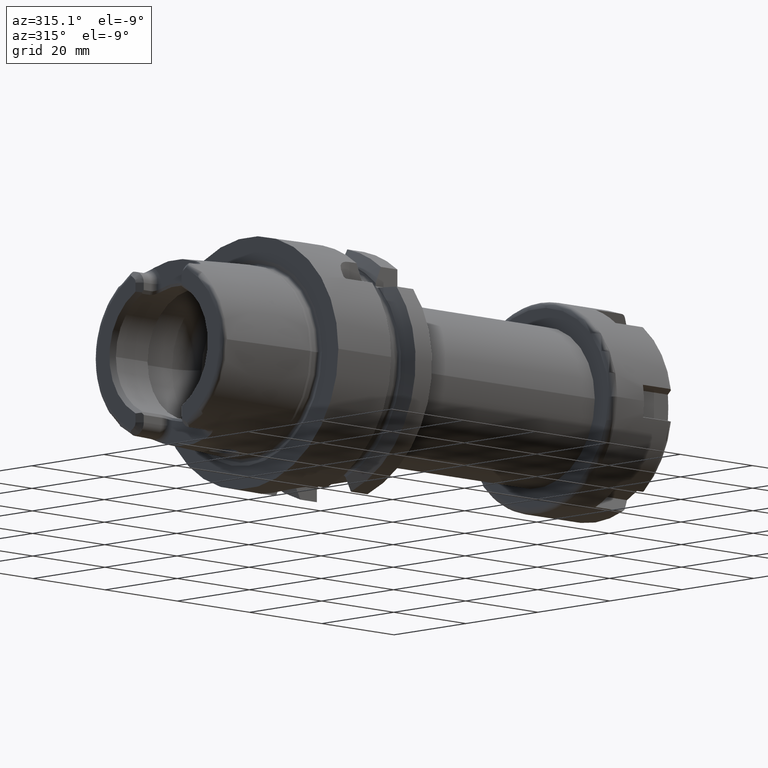
[diagram: clean part render]
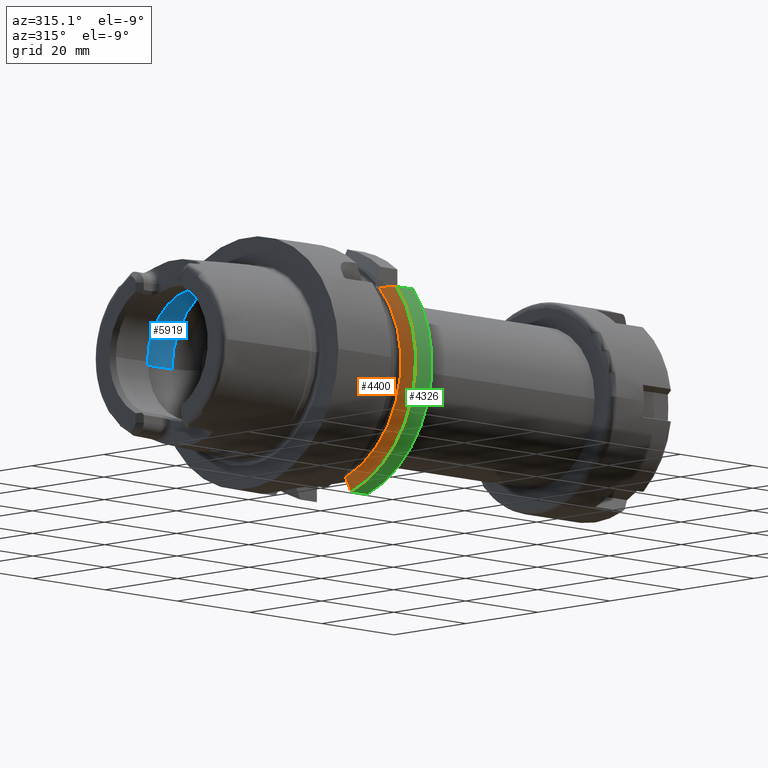
[diagram: same view with three faces highlighted in distinct colors, each labeled with its STEP entity id]
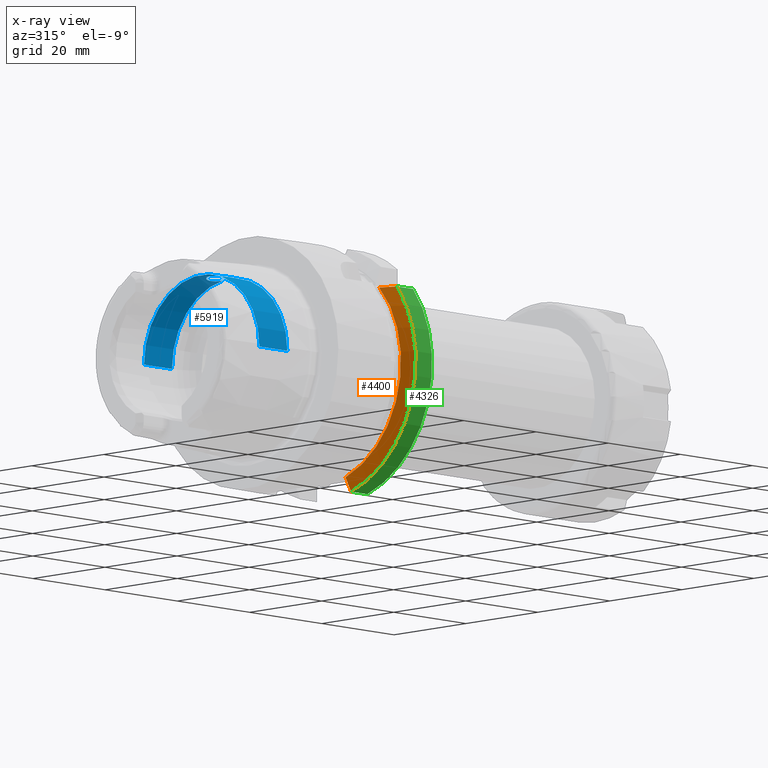
[diagram: x-ray of the same camera — body ghosted, the three highlighted faces saturated]
A machine part, auxiliary view with three faces highlighted in distinct colors.
The next image is the same camera in x-ray (body ghosted, the three faces saturated) — at least one of them is partly hidden behind the body in this view.
Their STEP definitions:

[orange] entity #4400 — the highlighted conical surface has half-angle 60 deg.
#1028=CARTESIAN_POINT('',(2.139193283149E1,0.E0,0.E0));
#1029=DIRECTION('',(-1.E0,0.E0,0.E0));
#1030=DIRECTION('',(0.E0,-2.807E-1,-9.597955563556E-1));
#1031=AXIS2_PLACEMENT_3D('',#1028,#1029,#1030);
#1153=CARTESIAN_POINT('',(1.99125E1,0.E0,0.E0));
#1154=DIRECTION('',(-1.E0,0.E0,0.E0));
#1155=DIRECTION('',(0.E0,-3.127570026704E-1,-9.498331733945E-1));
#1156=AXIS2_PLACEMENT_3D('',#1153,#1154,#1155);
#1932=CARTESIAN_POINT('',(1.99125E1,-1.636523825010E1,1.535E1));
#1933=CARTESIAN_POINT('',(2.005777044718E1,-1.671021589054E1,1.535E1));
#1934=CARTESIAN_POINT('',(2.036082860334E1,-1.741962945744E1,1.535E1));
#1935=CARTESIAN_POINT('',(2.085085341992E1,-1.853580810939E1,1.535E1));
#1936=CARTESIAN_POINT('',(2.120690576891E1,-1.932662776812E1,1.535E1));
#1937=CARTESIAN_POINT('',(2.139193283149E1,-1.973265060756E1,1.535E1));
#1978=CARTESIAN_POINT('',(1.99125E1,-7.0175E0,-2.131192663117E1));
#1979=CARTESIAN_POINT('',(2.006811666437E1,-7.0175E0,-2.159569853632E1));
#1980=CARTESIAN_POINT('',(2.038519487445E1,-7.0175E0,-2.217279119970E1));
#1981=CARTESIAN_POINT('',(2.087809730565E1,-7.0175E0,-2.306665585329E1));
#1982=CARTESIAN_POINT('',(2.121868469876E1,-7.0175E0,-2.368224465230E1));
#1983=CARTESIAN_POINT('',(2.139193283149E1,-7.0175E0,-2.399488890889E1));
#2981=CARTESIAN_POINT('',(1.99125E1,-7.0175E0,-2.131192663117E1));
#2983=VERTEX_POINT('',#2981);
#2984=VERTEX_POINT('',#1983);
#3029=CARTESIAN_POINT('',(1.99125E1,-1.636523825010E1,1.535E1));
#3030=VERTEX_POINT('',#3029);
#3031=VERTEX_POINT('',#1937);
#4386=CARTESIAN_POINT('',(2.065221641574E1,0.E0,0.E0));
#4387=DIRECTION('',(1.E0,0.E0,0.E0));
#4388=DIRECTION('',(0.E0,-1.E0,0.E0));
#4389=AXIS2_PLACEMENT_3D('',#4386,#4387,#4388);
#4390=CONICAL_SURFACE('',#4389,2.371877358474E1,6.E1);
#4391=ORIENTED_EDGE('',*,*,#4320,.F.);
#4393=ORIENTED_EDGE('',*,*,#4392,.F.);
#4395=ORIENTED_EDGE('',*,*,#4394,.T.);
#4397=ORIENTED_EDGE('',*,*,#4396,.T.);
#4398=EDGE_LOOP('',(#4391,#4393,#4395,#4397));
#4399=FACE_OUTER_BOUND('',#4398,.F.);
#4400=ADVANCED_FACE('',(#4399),#4390,.T.);
#1032=CIRCLE('',#1031,2.5E1);
#1157=CIRCLE('',#1156,2.243754716948E1);
#1938=B_SPLINE_CURVE_WITH_KNOTS('',3,(#1932,#1933,#1934,#1935,#1936,#1937),
.UNSPECIFIED.,.F.,.F.,(4,1,1,4),(0.E0,3.333333333333E-1,6.666666666667E-1,1.E0),
.UNSPECIFIED.);
#1984=B_SPLINE_CURVE_WITH_KNOTS('',3,(#1978,#1979,#1980,#1981,#1982,#1983),
.UNSPECIFIED.,.F.,.F.,(4,1,1,4),(0.E0,3.333333333333E-1,6.666666666667E-1,1.E0),
.UNSPECIFIED.);
#4320=EDGE_CURVE('',#2984,#3031,#1032,.T.);
#4392=EDGE_CURVE('',#2983,#2984,#1984,.T.);
#4394=EDGE_CURVE('',#2983,#3030,#1157,.T.);
#4396=EDGE_CURVE('',#3030,#3031,#1938,.T.);

[blue] entity #5919 — the highlighted cylindrical surface (partial cylindrical patch) has radius 16.04 mm, axis along (1, 0, 0).
#2176=CARTESIAN_POINT('',(-5.207075858867E0,1.934553923521E0,1.592291120106E1));
#2178=CARTESIAN_POINT('',(-5.207075858867E0,-1.934553923521E0,
1.592291120106E1));
#2192=CARTESIAN_POINT('',(-5.207075858867E0,1.934553923521E0,1.592291120106E1));
#2193=CARTESIAN_POINT('',(-5.306320503305E0,2.052183335833E0,1.590861981689E1));
#2194=CARTESIAN_POINT('',(-5.520476497369E0,2.269869891704E0,1.587956102050E1));
#2195=CARTESIAN_POINT('',(-5.894028504029E0,2.548236377436E0,1.583695701916E1));
#2196=CARTESIAN_POINT('',(-6.305385003655E0,2.764723008499E0,1.580028936537E1));
#2197=CARTESIAN_POINT('',(-6.739093470370E0,2.913892885959E0,1.577324272562E1));
#2198=CARTESIAN_POINT('',(-7.191228107409E0,2.995924116193E0,1.575774568186E1));
#2199=CARTESIAN_POINT('',(-7.660510654510E0,3.008582784075E0,1.575531451767E1));
#2200=CARTESIAN_POINT('',(-8.146781883912E0,2.943044302203E0,1.576780001743E1));
#2201=CARTESIAN_POINT('',(-8.609725020835E0,2.801070089858E0,1.579386826397E1));
#2202=CARTESIAN_POINT('',(-9.045274296343E0,2.586784786743E0,1.583070637763E1));
#2203=CARTESIAN_POINT('',(-9.445937304317E0,2.301136177936E0,1.587517601580E1));
#2204=CARTESIAN_POINT('',(-9.799042926387E0,1.948687636399E0,1.592272085609E1));
#2205=CARTESIAN_POINT('',(-1.009339556115E1,1.537509778757E0,1.596823642170E1));
#2206=CARTESIAN_POINT('',(-1.032634342467E1,1.054522533406E0,1.600806839229E1));
#2207=CARTESIAN_POINT('',(-1.046989883616E1,5.251672913284E-1,
1.603432516457E1));
#2208=CARTESIAN_POINT('',(-1.05E1,1.762494104108E-1,1.604E1));
#2209=CARTESIAN_POINT('',(-1.05E1,0.E0,1.604E1));
#2211=CARTESIAN_POINT('',(-5.207075858867E0,0.E0,0.E0));
#2212=DIRECTION('',(1.E0,0.E0,0.E0));
#2213=DIRECTION('',(0.E0,1.E0,0.E0));
#2214=AXIS2_PLACEMENT_3D('',#2211,#2212,#2213);
#2216=CARTESIAN_POINT('',(-5.207075858867E0,0.E0,0.E0));
#2217=DIRECTION('',(1.E0,0.E0,0.E0));
#2218=DIRECTION('',(0.E0,-1.206080999702E-1,9.927001995676E-1));
#2219=AXIS2_PLACEMENT_3D('',#2216,#2217,#2218);
#2221=CARTESIAN_POINT('',(-1.05E1,0.E0,1.604E1));
#2222=CARTESIAN_POINT('',(-1.05E1,-1.755342483422E-1,1.604E1));
#2223=CARTESIAN_POINT('',(-1.047014794877E1,-5.229251093153E-1,
1.603437221888E1));
#2224=CARTESIAN_POINT('',(-1.032791385930E1,-1.049702619740E0,
1.600835368841E1));
#2225=CARTESIAN_POINT('',(-1.009770259122E1,-1.529846448746E0,
1.596895246629E1));
#2226=CARTESIAN_POINT('',(-9.806279667905E0,-1.939932067796E0,
1.592378677339E1));
#2227=CARTESIAN_POINT('',(-9.456158236555E0,-2.292295766108E0,
1.587645662467E1));
#2228=CARTESIAN_POINT('',(-9.058710431136E0,-2.578569590166E0,
1.583205208676E1));
#2229=CARTESIAN_POINT('',(-8.626497976351E0,-2.794212612404E0,
1.579508959542E1));
#2230=CARTESIAN_POINT('',(-8.167357135096E0,-2.938272639501E0,
1.576869642913E1));
#2231=CARTESIAN_POINT('',(-7.684146534679E0,-3.007155479900E0,
1.575558945042E1));
#2232=CARTESIAN_POINT('',(-7.214328705971E0,-2.998334851601E0,
1.575728331260E1));
#2233=CARTESIAN_POINT('',(-6.757920099464E0,-2.918988827649E0,
1.577229556555E1));
#2234=CARTESIAN_POINT('',(-6.318667255520E0,-2.770706375567E0,
1.579924059192E1));
#2235=CARTESIAN_POINT('',(-5.901987560119E0,-2.553541097638E0,
1.583611009340E1));
#2236=CARTESIAN_POINT('',(-5.523827556712E0,-2.273110761877E0,
1.587911419274E1));
#2237=CARTESIAN_POINT('',(-5.307334756401E0,-2.053385476223E0,
1.590847376286E1));
#2238=CARTESIAN_POINT('',(-5.207075858867E0,-1.934553923521E0,
1.592291120106E1));
#2283=DIRECTION('',(-1.E0,0.E0,0.E0));
#2284=VECTOR('',#2283,7.745129591986E0);
#2285=CARTESIAN_POINT('',(-5.207075858867E0,-1.604E1,0.E0));
#2286=LINE('',#2285,#2284);
#2287=DIRECTION('',(-1.E0,0.E0,0.E0));
#2288=VECTOR('',#2287,7.745129591986E0);
#2289=CARTESIAN_POINT('',(-5.207075858867E0,1.604E1,0.E0));
#2290=LINE('',#2289,#2288);
#2540=CARTESIAN_POINT('',(-1.295220545085E1,0.E0,0.E0));
#2541=DIRECTION('',(1.E0,0.E0,0.E0));
#2542=DIRECTION('',(0.E0,1.E0,0.E0));
#2543=AXIS2_PLACEMENT_3D('',#2540,#2541,#2542);
#3111=CARTESIAN_POINT('',(-1.05E1,0.E0,1.604E1));
#3112=VERTEX_POINT('',#3111);
#3137=CARTESIAN_POINT('',(-5.207075858867E0,1.604E1,0.E0));
#3138=VERTEX_POINT('',#3137);
#3139=CARTESIAN_POINT('',(-1.295220545085E1,1.604E1,0.E0));
#3140=VERTEX_POINT('',#3139);
#3149=CARTESIAN_POINT('',(-5.207075858867E0,-1.604E1,0.E0));
#3150=VERTEX_POINT('',#3149);
#3151=CARTESIAN_POINT('',(-1.295220545085E1,-1.604E1,0.E0));
#3152=VERTEX_POINT('',#3151);
#3167=VERTEX_POINT('',#2176);
#3168=VERTEX_POINT('',#2178);
#5902=CARTESIAN_POINT('',(-2.66425E1,0.E0,0.E0));
#5903=DIRECTION('',(1.E0,0.E0,0.E0));
#5904=DIRECTION('',(0.E0,-1.E0,0.E0));
#5905=AXIS2_PLACEMENT_3D('',#5902,#5903,#5904);
#5906=CYLINDRICAL_SURFACE('',#5905,1.604E1);
#5907=ORIENTED_EDGE('',*,*,#5861,.F.);
#5908=ORIENTED_EDGE('',*,*,#5897,.F.);
#5910=ORIENTED_EDGE('',*,*,#5909,.T.);
#5912=ORIENTED_EDGE('',*,*,#5911,.T.);
#5914=ORIENTED_EDGE('',*,*,#5913,.F.);
#5915=ORIENTED_EDGE('',*,*,#5889,.F.);
#5916=ORIENTED_EDGE('',*,*,#5631,.F.);
#5917=EDGE_LOOP('',(#5907,#5908,#5910,#5912,#5914,#5915,#5916));
#5918=FACE_OUTER_BOUND('',#5917,.F.);
#5919=ADVANCED_FACE('',(#5918),#5906,.F.);
#2210=B_SPLINE_CURVE_WITH_KNOTS('',3,(#2192,#2193,#2194,#2195,#2196,#2197,#2198,
#2199,#2200,#2201,#2202,#2203,#2204,#2205,#2206,#2207,#2208,#2209),
.UNSPECIFIED.,.F.,.F.,(4,1,1,1,1,1,1,1,1,1,1,1,1,1,1,4),(0.E0,6.666666666667E-2,
1.333333333333E-1,2.E-1,2.666666666667E-1,3.333333333333E-1,4.E-1,
4.666666666667E-1,5.333333333333E-1,6.E-1,6.666666666667E-1,7.333333333333E-1,
8.E-1,8.666666666667E-1,9.333333333333E-1,1.E0),.UNSPECIFIED.);
#2215=CIRCLE('',#2214,1.604E1);
#2220=CIRCLE('',#2219,1.604E1);
#2239=B_SPLINE_CURVE_WITH_KNOTS('',3,(#2221,#2222,#2223,#2224,#2225,#2226,#2227,
#2228,#2229,#2230,#2231,#2232,#2233,#2234,#2235,#2236,#2237,#2238),
.UNSPECIFIED.,.F.,.F.,(4,1,1,1,1,1,1,1,1,1,1,1,1,1,1,4),(0.E0,6.666666666667E-2,
1.333333333333E-1,2.E-1,2.666666666667E-1,3.333333333333E-1,4.E-1,
4.666666666667E-1,5.333333333333E-1,6.E-1,6.666666666667E-1,7.333333333333E-1,
8.E-1,8.666666666667E-1,9.333333333333E-1,1.E0),.UNSPECIFIED.);
#2544=CIRCLE('',#2543,1.604E1);
#5631=EDGE_CURVE('',#3112,#3168,#2239,.T.);
#5861=EDGE_CURVE('',#3167,#3112,#2210,.T.);
#5889=EDGE_CURVE('',#3168,#3150,#2220,.T.);
#5897=EDGE_CURVE('',#3138,#3167,#2215,.T.);
#5909=EDGE_CURVE('',#3138,#3140,#2290,.T.);
#5911=EDGE_CURVE('',#3140,#3152,#2544,.T.);
#5913=EDGE_CURVE('',#3150,#3152,#2286,.T.);

[green] entity #4326 — the highlighted cylindrical surface (partial cylindrical patch) has radius 25 mm, axis along (1, 0, 0).
#1019=CARTESIAN_POINT('',(2.595E1,0.E0,0.E0));
#1020=DIRECTION('',(1.E0,0.E0,0.E0));
#1021=DIRECTION('',(0.E0,-7.893060243024E-1,6.14E-1));
#1022=AXIS2_PLACEMENT_3D('',#1019,#1020,#1021);
#1024=DIRECTION('',(1.E0,0.E0,0.E0));
#1025=VECTOR('',#1024,4.558067168511E0);
#1026=CARTESIAN_POINT('',(2.139193283149E1,-7.0175E0,-2.399488890889E1));
#1027=LINE('',#1026,#1025);
#1028=CARTESIAN_POINT('',(2.139193283149E1,0.E0,0.E0));
#1029=DIRECTION('',(-1.E0,0.E0,0.E0));
#1030=DIRECTION('',(0.E0,-2.807E-1,-9.597955563556E-1));
#1031=AXIS2_PLACEMENT_3D('',#1028,#1029,#1030);
#1033=DIRECTION('',(1.E0,0.E0,0.E0));
#1034=VECTOR('',#1033,4.558067168511E0);
#1035=CARTESIAN_POINT('',(2.139193283149E1,-1.973265060756E1,1.535E1));
#1036=LINE('',#1035,#1034);
#1937=CARTESIAN_POINT('',(2.139193283149E1,-1.973265060756E1,1.535E1));
#1983=CARTESIAN_POINT('',(2.139193283149E1,-7.0175E0,-2.399488890889E1));
#2984=VERTEX_POINT('',#1983);
#3031=VERTEX_POINT('',#1937);
#3131=CARTESIAN_POINT('',(2.595E1,-1.973265060756E1,1.535E1));
#3132=VERTEX_POINT('',#3131);
#3173=CARTESIAN_POINT('',(2.595E1,-7.0175E0,-2.399488890889E1));
#3174=VERTEX_POINT('',#3173);
#4311=CARTESIAN_POINT('',(-2.74425E1,0.E0,0.E0));
#4312=DIRECTION('',(1.E0,0.E0,0.E0));
#4313=DIRECTION('',(0.E0,-1.E0,0.E0));
#4314=AXIS2_PLACEMENT_3D('',#4311,#4312,#4313);
#4315=CYLINDRICAL_SURFACE('',#4314,2.5E1);
#4317=ORIENTED_EDGE('',*,*,#4316,.T.);
#4319=ORIENTED_EDGE('',*,*,#4318,.F.);
#4321=ORIENTED_EDGE('',*,*,#4320,.T.);
#4323=ORIENTED_EDGE('',*,*,#4322,.T.);
#4324=EDGE_LOOP('',(#4317,#4319,#4321,#4323));
#4325=FACE_OUTER_BOUND('',#4324,.F.);
#4326=ADVANCED_FACE('',(#4325),#4315,.T.);
#1023=CIRCLE('',#1022,2.5E1);
#1032=CIRCLE('',#1031,2.5E1);
#4316=EDGE_CURVE('',#3132,#3174,#1023,.T.);
#4318=EDGE_CURVE('',#2984,#3174,#1027,.T.);
#4320=EDGE_CURVE('',#2984,#3031,#1032,.T.);
#4322=EDGE_CURVE('',#3031,#3132,#1036,.T.);